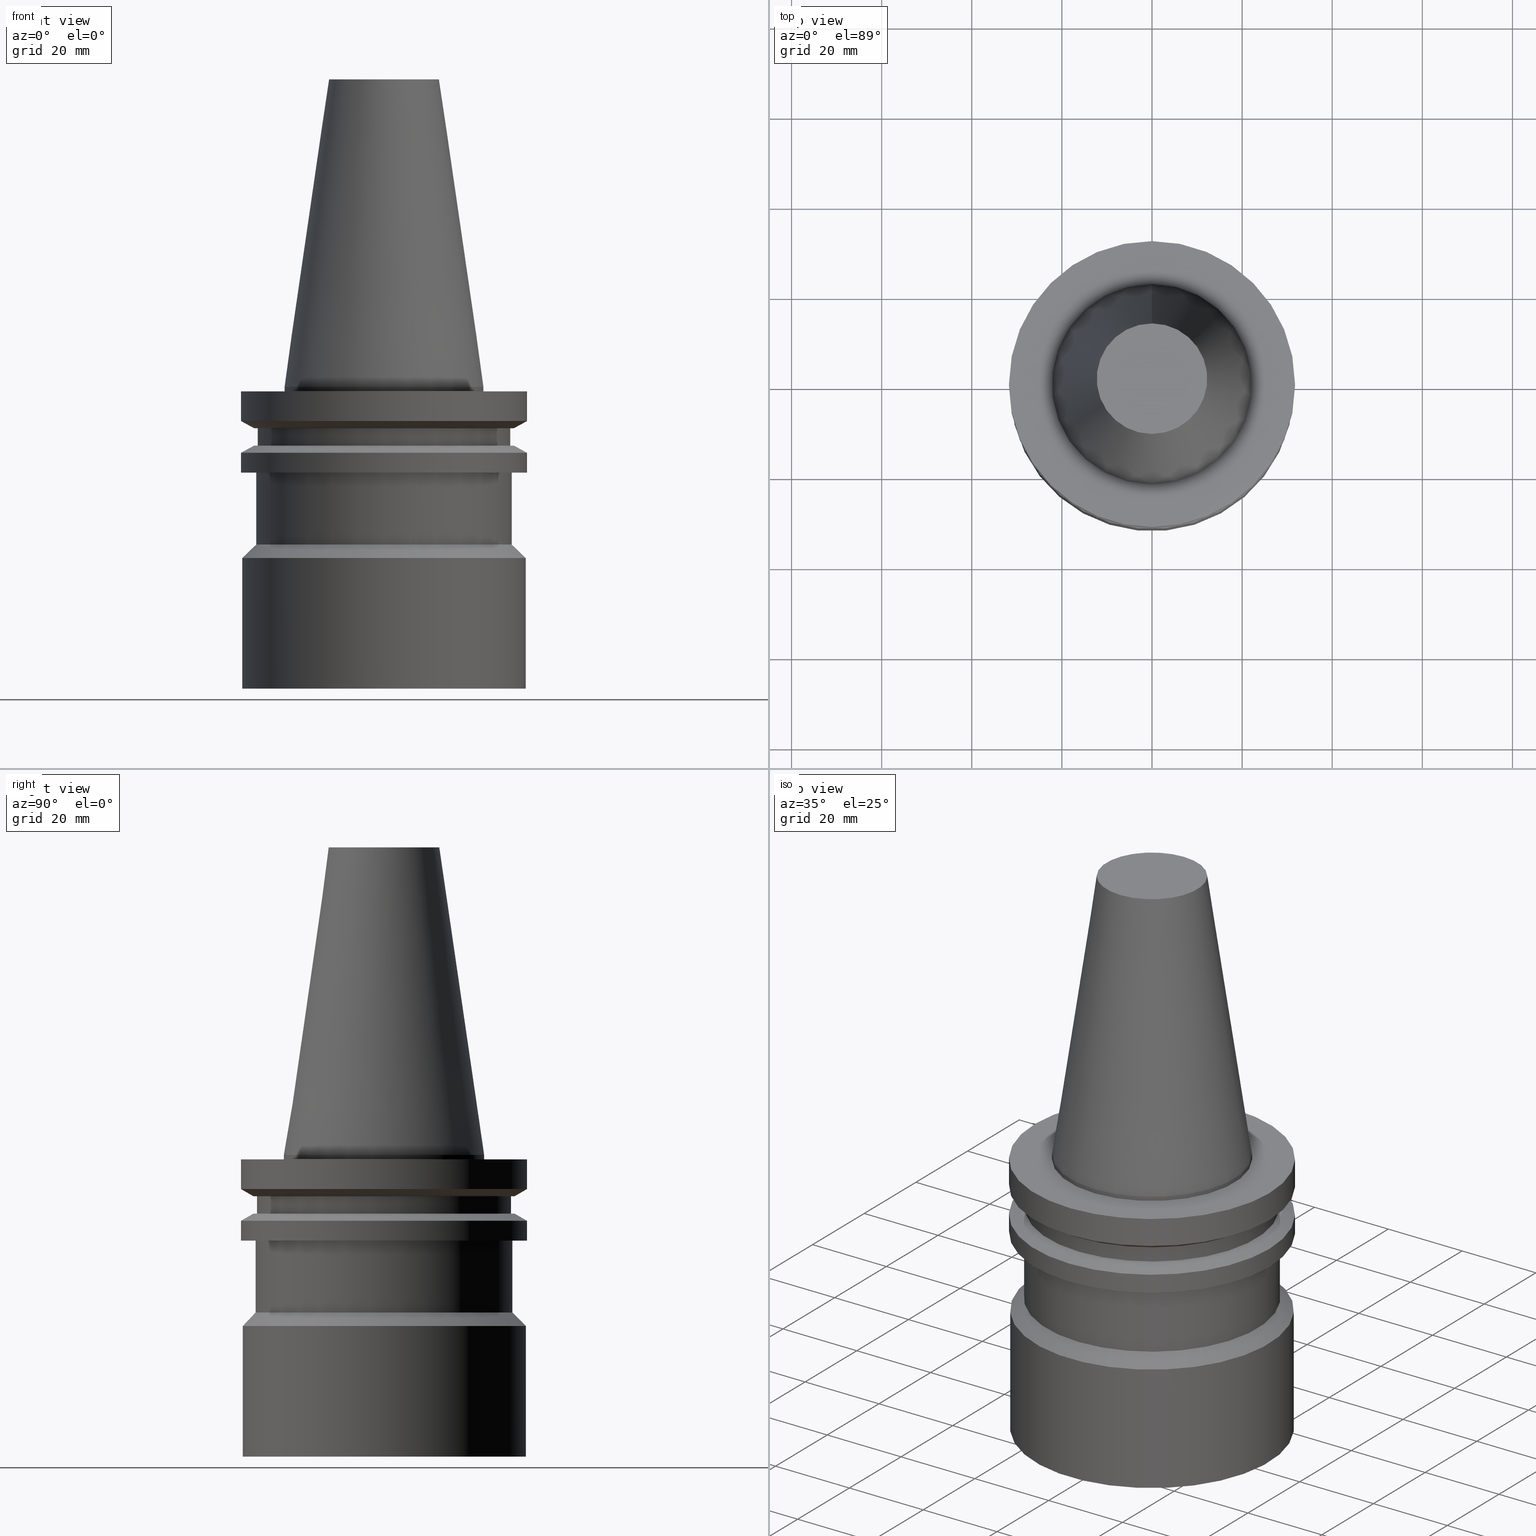
[diagram: canonical four-view strip — front | top / right | iso, engineering-drawing reading convention]
A machine part, canonical four-view strip (front | top / right | iso — engineering-drawing reading convention). The complete STEP part file that produces these views, byte-faithful:
ISO-10303-21;
HEADER;
FILE_DESCRIPTION((''),'1');
FILE_NAME('V:/01_Dxf_Field-HP\X2\FF71FF6FFF8CFF9F5916\X0\2013/BIGKAISER\X2\FF76FF80FF9BFF78FF9E63B28F095206\X0\_BKUS_201803/BCV_Y-S/BCV40Y-S63-2.625.stp','2018-03-13T06:05:27',(''),(''),'Spatial Interop R21 SP3','Kubotek KeyCreator 2011 V10.0.2 (22737)',' ');
FILE_SCHEMA(('automotive_design'));
ENDSEC;
DATA;
#1=MECHANICAL_DESIGN_GEOMETRIC_PRESENTATION_REPRESENTATION(' ',(#10,#11,#12,#13,#14,#15,#16,#17,#18,#19,#20,#21,#22,#23,#24,#25,#26,#27,#28,#29,#30,#31,#32,#33,#34,#35,#36,#37,#38,#39,#40,#41),#6);
#2=PRODUCT_DEFINITION_CONTEXT('',#42,'design');
#3=APPLICATION_PROTOCOL_DEFINITION('INTERNATIONAL STANDARD','automotive_design',1994,#42);
#4=PRODUCT_CATEGORY_RELATIONSHIP('NONE','NONE',#43,#44);
#5=SHAPE_DEFINITION_REPRESENTATION(#45,#46);
#6= (GEOMETRIC_REPRESENTATION_CONTEXT(3)GLOBAL_UNCERTAINTY_ASSIGNED_CONTEXT((#49))GLOBAL_UNIT_ASSIGNED_CONTEXT((#51,#52,#53))REPRESENTATION_CONTEXT('NONE','WORKSPACE'));
#10=STYLED_ITEM('',(#55,#56),#57);
#11=STYLED_ITEM('',(#58),#59);
#12=STYLED_ITEM('',(#60),#61);
#13=STYLED_ITEM('',(#62,#63),#64);
#14=STYLED_ITEM('',(#65),#66);
#15=STYLED_ITEM('',(#67,#68),#69);
#16=STYLED_ITEM('',(#70),#71);
#17=STYLED_ITEM('',(#72),#73);
#18=STYLED_ITEM('',(#74),#75);
#19=STYLED_ITEM('',(#76,#77),#78);
#20=STYLED_ITEM('',(#79,#80),#81);
#21=STYLED_ITEM('',(#82,#83),#84);
#22=STYLED_ITEM('',(#85),#86);
#23=STYLED_ITEM('',(#87),#88);
#24=STYLED_ITEM('',(#89),#90);
#25=STYLED_ITEM('',(#91),#92);
#26=STYLED_ITEM('',(#93,#94),#95);
#27=STYLED_ITEM('',(#96,#97),#98);
#28=STYLED_ITEM('',(#99),#100);
#29=STYLED_ITEM('',(#101,#102),#103);
#30=STYLED_ITEM('',(#104),#105);
#31=STYLED_ITEM('',(#106,#107),#108);
#32=STYLED_ITEM('',(#109,#110),#111);
#33=STYLED_ITEM('',(#112,#113),#114);
#34=STYLED_ITEM('',(#115,#116),#117);
#35=STYLED_ITEM('',(#118),#119);
#36=STYLED_ITEM('',(#120,#121),#122);
#37=STYLED_ITEM('',(#123,#124),#125);
#38=STYLED_ITEM('',(#126,#127),#128);
#39=STYLED_ITEM('',(#129),#130);
#40=STYLED_ITEM('',(#131),#132);
#41=STYLED_ITEM('',(#133,#134),#135);
#42=APPLICATION_CONTEXT(' ');
#43=PRODUCT_CATEGORY('part','NONE');
#44=PRODUCT_RELATED_PRODUCT_CATEGORY('detail',' ',(#136));
#45=PRODUCT_DEFINITION_SHAPE('NONE','NONE',#137);
#46=ADVANCED_BREP_SHAPE_REPRESENTATION('Unnamed[1]',(#69,#138),#6);
#49=UNCERTAINTY_MEASURE_WITH_UNIT(LENGTH_MEASURE(1.0E-006),#51,'','');
#51= (CONVERSION_BASED_UNIT('MILLIMETRE',#141)LENGTH_UNIT()NAMED_UNIT(#144));
#52= (NAMED_UNIT(#146)PLANE_ANGLE_UNIT()SI_UNIT($,.RADIAN.));
#53= (NAMED_UNIT(#146)SOLID_ANGLE_UNIT()SI_UNIT($,.STERADIAN.));
#55=PRESENTATION_STYLE_ASSIGNMENT((#152));
#56=PRESENTATION_STYLE_ASSIGNMENT((#153));
#57=ADVANCED_FACE('Unnamed[1]',(#154,#155),#156,.T.);
#58=PRESENTATION_STYLE_ASSIGNMENT((#157));
#59=EDGE_CURVE('Unnamed[1]',#158,#158,#159,.T.);
#60=PRESENTATION_STYLE_ASSIGNMENT((#160));
#61=EDGE_CURVE('Unnamed[1]',#161,#161,#162,.T.);
#62=PRESENTATION_STYLE_ASSIGNMENT((#163));
#63=PRESENTATION_STYLE_ASSIGNMENT((#164));
#64=ADVANCED_FACE('Unnamed[1]',(#165,#166),#167,.T.);
#65=PRESENTATION_STYLE_ASSIGNMENT((#168));
#66=EDGE_CURVE('Unnamed[1]',#169,#169,#170,.T.);
#67=PRESENTATION_STYLE_ASSIGNMENT((#171));
#68=PRESENTATION_STYLE_ASSIGNMENT((#172));
#69=MANIFOLD_SOLID_BREP('Unnamed[1]',#173);
#70=PRESENTATION_STYLE_ASSIGNMENT((#174));
#71=EDGE_CURVE('Unnamed[1]',#175,#175,#176,.T.);
#72=PRESENTATION_STYLE_ASSIGNMENT((#177));
#73=EDGE_CURVE('Unnamed[1]',#178,#178,#179,.T.);
#74=PRESENTATION_STYLE_ASSIGNMENT((#180));
#75=EDGE_CURVE('Unnamed[1]',#181,#181,#182,.T.);
#76=PRESENTATION_STYLE_ASSIGNMENT((#183));
#77=PRESENTATION_STYLE_ASSIGNMENT((#184));
#78=ADVANCED_FACE('Unnamed[1]',(#185,#186),#187,.T.);
#79=PRESENTATION_STYLE_ASSIGNMENT((#188));
#80=PRESENTATION_STYLE_ASSIGNMENT((#189));
#81=ADVANCED_FACE('Unnamed[1]',(#190),#191,.T.);
#82=PRESENTATION_STYLE_ASSIGNMENT((#192));
#83=PRESENTATION_STYLE_ASSIGNMENT((#193));
#84=ADVANCED_FACE('Unnamed[1]',(#194,#195),#196,.T.);
#85=PRESENTATION_STYLE_ASSIGNMENT((#197));
#86=EDGE_CURVE('Unnamed[1]',#198,#198,#199,.T.);
#87=PRESENTATION_STYLE_ASSIGNMENT((#200));
#88=EDGE_CURVE('Unnamed[1]',#201,#201,#202,.T.);
#89=PRESENTATION_STYLE_ASSIGNMENT((#203));
#90=EDGE_CURVE('Unnamed[1]',#204,#204,#205,.T.);
#91=PRESENTATION_STYLE_ASSIGNMENT((#206));
#92=EDGE_CURVE('Unnamed[1]',#207,#207,#208,.T.);
#93=PRESENTATION_STYLE_ASSIGNMENT((#209));
#94=PRESENTATION_STYLE_ASSIGNMENT((#210));
#95=ADVANCED_FACE('Unnamed[1]',(#211,#212),#213,.T.);
#96=PRESENTATION_STYLE_ASSIGNMENT((#214));
#97=PRESENTATION_STYLE_ASSIGNMENT((#215));
#98=ADVANCED_FACE('Unnamed[1]',(#216,#217),#218,.T.);
#99=PRESENTATION_STYLE_ASSIGNMENT((#219));
#100=EDGE_CURVE('Unnamed[1]',#220,#220,#221,.T.);
#101=PRESENTATION_STYLE_ASSIGNMENT((#222));
#102=PRESENTATION_STYLE_ASSIGNMENT((#223));
#103=ADVANCED_FACE('Unnamed[1]',(#224,#225),#226,.T.);
#104=PRESENTATION_STYLE_ASSIGNMENT((#227));
#105=EDGE_CURVE('Unnamed[1]',#228,#228,#229,.T.);
#106=PRESENTATION_STYLE_ASSIGNMENT((#230));
#107=PRESENTATION_STYLE_ASSIGNMENT((#231));
#108=ADVANCED_FACE('Unnamed[1]',(#232,#233),#234,.T.);
#109=PRESENTATION_STYLE_ASSIGNMENT((#235));
#110=PRESENTATION_STYLE_ASSIGNMENT((#236));
#111=ADVANCED_FACE('Unnamed[1]',(#237,#238),#239,.T.);
#112=PRESENTATION_STYLE_ASSIGNMENT((#240));
#113=PRESENTATION_STYLE_ASSIGNMENT((#241));
#114=ADVANCED_FACE('Unnamed[1]',(#242),#243,.T.);
#115=PRESENTATION_STYLE_ASSIGNMENT((#244));
#116=PRESENTATION_STYLE_ASSIGNMENT((#245));
#117=ADVANCED_FACE('Unnamed[1]',(#246,#247),#248,.T.);
#118=PRESENTATION_STYLE_ASSIGNMENT((#249));
#119=EDGE_CURVE('Unnamed[1]',#250,#250,#251,.T.);
#120=PRESENTATION_STYLE_ASSIGNMENT((#252));
#121=PRESENTATION_STYLE_ASSIGNMENT((#253));
#122=ADVANCED_FACE('Unnamed[1]',(#254,#255),#256,.T.);
#123=PRESENTATION_STYLE_ASSIGNMENT((#257));
#124=PRESENTATION_STYLE_ASSIGNMENT((#258));
#125=ADVANCED_FACE('Unnamed[1]',(#259,#260),#261,.T.);
#126=PRESENTATION_STYLE_ASSIGNMENT((#262));
#127=PRESENTATION_STYLE_ASSIGNMENT((#263));
#128=ADVANCED_FACE('Unnamed[1]',(#264,#265),#266,.T.);
#129=PRESENTATION_STYLE_ASSIGNMENT((#267));
#130=EDGE_CURVE('Unnamed[1]',#268,#268,#269,.T.);
#131=PRESENTATION_STYLE_ASSIGNMENT((#270));
#132=EDGE_CURVE('Unnamed[1]',#271,#271,#272,.T.);
#133=PRESENTATION_STYLE_ASSIGNMENT((#273));
#134=PRESENTATION_STYLE_ASSIGNMENT((#274));
#135=ADVANCED_FACE('Unnamed[1]',(#275,#276),#277,.T.);
#136=PRODUCT('Unnamed[1]','Unnamed[1]','PART-Unnamed[1]-DESC',(#278));
#137=PRODUCT_DEFINITION('NONE','NONE',#279,#2);
#138=AXIS2_PLACEMENT_3D('',#280,#281,#282);
#141=LENGTH_MEASURE_WITH_UNIT(LENGTH_MEASURE(1.0),#283);
#144=DIMENSIONAL_EXPONENTS(1.0,0.0,0.0,0.0,0.0,0.0,0.0);
#146=DIMENSIONAL_EXPONENTS(0.0,0.0,0.0,0.0,0.0,0.0,0.0);
#152=SURFACE_STYLE_USAGE(.BOTH.,#284);
#153=CURVE_STYLE('',#285,POSITIVE_LENGTH_MEASURE(1000.0),#286);
#154=FACE_BOUND('',#287,.T.);
#155=FACE_BOUND('',#288,.T.);
#156=CONICAL_SURFACE('',#289,30.0,0.78539816339747);
#157=CURVE_STYLE('',#290,POSITIVE_LENGTH_MEASURE(1000.0),#291);
#158=VERTEX_POINT('',#292);
#159=CIRCLE('',#293,28.18);
#160=CURVE_STYLE('',#294,POSITIVE_LENGTH_MEASURE(1000.0),#295);
#161=VERTEX_POINT('',#296);
#162=CIRCLE('',#297,31.5);
#163=SURFACE_STYLE_USAGE(.BOTH.,#298);
#164=CURVE_STYLE('',#299,POSITIVE_LENGTH_MEASURE(1000.0),#300);
#165=FACE_BOUND('',#301,.T.);
#166=FACE_BOUND('',#302,.T.);
#167=CYLINDRICAL_SURFACE('',#303,28.5);
#168=CURVE_STYLE('',#304,POSITIVE_LENGTH_MEASURE(1000.0),#305);
#169=VERTEX_POINT('',#306);
#170=CIRCLE('',#307,31.75);
#171=SURFACE_STYLE_USAGE(.BOTH.,#308);
#172=CURVE_STYLE('',#309,POSITIVE_LENGTH_MEASURE(1000.0),#310);
#173=CLOSED_SHELL('',(#114,#108,#135,#122,#95,#78,#103,#125,#111,#84,#98,#128,#64,#57,#117,#81));
#174=CURVE_STYLE('',#311,POSITIVE_LENGTH_MEASURE(1000.0),#312);
#175=VERTEX_POINT('',#313);
#176=CIRCLE('',#314,28.18);
#177=CURVE_STYLE('',#315,POSITIVE_LENGTH_MEASURE(1000.0),#316);
#178=VERTEX_POINT('',#317);
#179=CIRCLE('',#318,22.225);
#180=CURVE_STYLE('',#319,POSITIVE_LENGTH_MEASURE(1000.0),#320);
#181=VERTEX_POINT('',#321);
#182=CIRCLE('',#322,28.9680375505323);
#183=SURFACE_STYLE_USAGE(.BOTH.,#323);
#184=CURVE_STYLE('',#324,POSITIVE_LENGTH_MEASURE(1000.0),#325);
#185=FACE_BOUND('',#326,.T.);
#186=FACE_BOUND('',#327,.T.);
#187=CONICAL_SURFACE('',#328,30.3590187752662,1.0471975511966);
#188=SURFACE_STYLE_USAGE(.BOTH.,#329);
#189=CURVE_STYLE('',#330,POSITIVE_LENGTH_MEASURE(1000.0),#331);
#190=FACE_OUTER_BOUND('',#332,.T.);
#191=PLANE('',#333);
#192=SURFACE_STYLE_USAGE(.BOTH.,#334);
#193=CURVE_STYLE('',#335,POSITIVE_LENGTH_MEASURE(1000.0),#336);
#194=FACE_BOUND('',#337,.T.);
#195=FACE_BOUND('',#338,.T.);
#196=CONICAL_SURFACE('',#339,30.3590187752662,1.0471975511966);
#197=CURVE_STYLE('',#340,POSITIVE_LENGTH_MEASURE(1000.0),#341);
#198=VERTEX_POINT('',#342);
#199=CIRCLE('',#343,31.75);
#200=CURVE_STYLE('',#344,POSITIVE_LENGTH_MEASURE(1000.0),#345);
#201=VERTEX_POINT('',#346);
#202=CIRCLE('',#347,28.5);
#203=CURVE_STYLE('',#348,POSITIVE_LENGTH_MEASURE(1000.0),#349);
#204=VERTEX_POINT('',#350);
#205=CIRCLE('',#351,28.5000000000001);
#206=CURVE_STYLE('',#352,POSITIVE_LENGTH_MEASURE(1000.0),#353);
#207=VERTEX_POINT('',#354);
#208=CIRCLE('',#355,31.75);
#209=SURFACE_STYLE_USAGE(.BOTH.,#356);
#210=CURVE_STYLE('',#357,POSITIVE_LENGTH_MEASURE(1000.0),#358);
#211=FACE_BOUND('',#359,.T.);
#212=FACE_BOUND('',#360,.T.);
#213=CYLINDRICAL_SURFACE('',#361,31.75);
#214=SURFACE_STYLE_USAGE(.BOTH.,#362);
#215=CURVE_STYLE('',#363,POSITIVE_LENGTH_MEASURE(1000.0),#364);
#216=FACE_BOUND('',#365,.T.);
#217=FACE_BOUND('',#366,.T.);
#218=CYLINDRICAL_SURFACE('',#367,31.75);
#219=CURVE_STYLE('',#368,POSITIVE_LENGTH_MEASURE(1000.0),#369);
#220=VERTEX_POINT('',#370);
#221=CIRCLE('',#371,22.225);
#222=SURFACE_STYLE_USAGE(.BOTH.,#372);
#223=CURVE_STYLE('',#373,POSITIVE_LENGTH_MEASURE(1000.0),#374);
#224=FACE_BOUND('',#375,.T.);
#225=FACE_OUTER_BOUND('',#376,.T.);
#226=PLANE('',#377);
#227=CURVE_STYLE('',#378,POSITIVE_LENGTH_MEASURE(1000.0),#379);
#228=VERTEX_POINT('',#380);
#229=CIRCLE('',#381,31.5);
#230=SURFACE_STYLE_USAGE(.BOTH.,#382);
#231=CURVE_STYLE('',#383,POSITIVE_LENGTH_MEASURE(1000.0),#384);
#232=FACE_BOUND('',#385,.T.);
#233=FACE_BOUND('',#386,.T.);
#234=CONICAL_SURFACE('',#387,17.2484375007384,0.144812498217751);
#235=SURFACE_STYLE_USAGE(.BOTH.,#388);
#236=CURVE_STYLE('',#389,POSITIVE_LENGTH_MEASURE(1000.0),#390);
#237=FACE_OUTER_BOUND('',#391,.T.);
#238=FACE_BOUND('',#392,.T.);
#239=PLANE('',#393);
#240=SURFACE_STYLE_USAGE(.BOTH.,#394);
#241=CURVE_STYLE('',#395,POSITIVE_LENGTH_MEASURE(1000.0),#396);
#242=FACE_OUTER_BOUND('',#397,.T.);
#243=PLANE('',#398);
#244=SURFACE_STYLE_USAGE(.BOTH.,#399);
#245=CURVE_STYLE('',#400,POSITIVE_LENGTH_MEASURE(1000.0),#401);
#246=FACE_BOUND('',#402,.T.);
#247=FACE_BOUND('',#403,.T.);
#248=CYLINDRICAL_SURFACE('',#404,31.5);
#249=CURVE_STYLE('',#405,POSITIVE_LENGTH_MEASURE(1000.0),#406);
#250=VERTEX_POINT('',#407);
#251=CIRCLE('',#408,31.75);
#252=SURFACE_STYLE_USAGE(.BOTH.,#409);
#253=CURVE_STYLE('',#410,POSITIVE_LENGTH_MEASURE(1000.0),#411);
#254=FACE_OUTER_BOUND('',#412,.T.);
#255=FACE_BOUND('',#413,.T.);
#256=PLANE('',#414);
#257=SURFACE_STYLE_USAGE(.BOTH.,#415);
#258=CURVE_STYLE('',#416,POSITIVE_LENGTH_MEASURE(1000.0),#417);
#259=FACE_BOUND('',#418,.T.);
#260=FACE_BOUND('',#419,.T.);
#261=CYLINDRICAL_SURFACE('',#420,28.18);
#262=SURFACE_STYLE_USAGE(.BOTH.,#421);
#263=CURVE_STYLE('',#422,POSITIVE_LENGTH_MEASURE(1000.0),#423);
#264=FACE_BOUND('',#424,.T.);
#265=FACE_OUTER_BOUND('',#425,.T.);
#266=PLANE('',#426);
#267=CURVE_STYLE('',#427,POSITIVE_LENGTH_MEASURE(1000.0),#428);
#268=VERTEX_POINT('',#429);
#269=CIRCLE('',#430,12.2718750014768);
#270=CURVE_STYLE('',#431,POSITIVE_LENGTH_MEASURE(1000.0),#432);
#271=VERTEX_POINT('',#433);
#272=CIRCLE('',#434,28.9680375505324);
#273=SURFACE_STYLE_USAGE(.BOTH.,#435);
#274=CURVE_STYLE('',#436,POSITIVE_LENGTH_MEASURE(1000.0),#437);
#275=FACE_BOUND('',#438,.T.);
#276=FACE_BOUND('',#439,.T.);
#277=CYLINDRICAL_SURFACE('',#440,22.225);
#278=PRODUCT_CONTEXT('',#42,'mechanical');
#279=PRODUCT_DEFINITION_FORMATION_WITH_SPECIFIED_SOURCE(' ','NONE',#136,.NOT_KNOWN.);
#280=CARTESIAN_POINT('',(0.0,0.0,0.0));
#281=DIRECTION('',(0.0,0.0,1.0));
#282=DIRECTION('',(1.0,0.0,0.0));
#283= (NAMED_UNIT(#144)LENGTH_UNIT()SI_UNIT(.MILLI.,.METRE.));
#284=SURFACE_SIDE_STYLE('',(#442));
#285=DRAUGHTING_PRE_DEFINED_CURVE_FONT('continuous');
#286=COLOUR_RGB('',0.0,1.0,0.0);
#287=EDGE_LOOP('',(#443));
#288=EDGE_LOOP('',(#444));
#289=AXIS2_PLACEMENT_3D('',#445,#446,#447);
#290=DRAUGHTING_PRE_DEFINED_CURVE_FONT('continuous');
#291=COLOUR_RGB('',0.0,1.0,0.0);
#292=CARTESIAN_POINT('',(5.63337527607784E-016,28.18,-9.20000000000002));
#293=AXIS2_PLACEMENT_3D('',#448,#449,#450);
#294=DRAUGHTING_PRE_DEFINED_CURVE_FONT('continuous');
#295=COLOUR_RGB('',0.0,1.0,0.0);
#296=CARTESIAN_POINT('',(4.10256677714362E-015,31.4999999999999,-66.9999999999998));
#297=AXIS2_PLACEMENT_3D('',#451,#452,#453);
#298=SURFACE_SIDE_STYLE('',(#454));
#299=DRAUGHTING_PRE_DEFINED_CURVE_FONT('continuous');
#300=COLOUR_RGB('',0.0,1.0,0.0);
#301=EDGE_LOOP('',(#455));
#302=EDGE_LOOP('',(#456));
#303=AXIS2_PLACEMENT_3D('',#457,#458,#459);
#304=DRAUGHTING_PRE_DEFINED_CURVE_FONT('continuous');
#305=COLOUR_RGB('',0.0,1.0,0.0);
#306=CARTESIAN_POINT('',(6.12323399573673E-017,31.75,-0.999999999999996));
#307=AXIS2_PLACEMENT_3D('',#460,#461,#462);
#308=SURFACE_SIDE_STYLE('',(#463));
#309=DRAUGHTING_PRE_DEFINED_CURVE_FONT('continuous');
#310=COLOUR_RGB('',0.0,1.0,0.0);
#311=DRAUGHTING_PRE_DEFINED_CURVE_FONT('continuous');
#312=COLOUR_RGB('',0.0,1.0,0.0);
#313=CARTESIAN_POINT('',(7.98469713044073E-016,28.18,-13.04));
#314=AXIS2_PLACEMENT_3D('',#464,#465,#466);
#315=DRAUGHTING_PRE_DEFINED_CURVE_FONT('continuous');
#316=COLOUR_RGB('',0.0,1.0,0.0);
#317=CARTESIAN_POINT('',(6.12323399573674E-017,22.225,-0.999999999999997));
#318=AXIS2_PLACEMENT_3D('',#467,#468,#469);
#319=DRAUGHTING_PRE_DEFINED_CURVE_FONT('continuous');
#320=COLOUR_RGB('',0.0,1.0,0.0);
#321=CARTESIAN_POINT('',(5.63337527607784E-016,28.9680375505323,-9.20000000000002));
#322=AXIS2_PLACEMENT_3D('',#470,#471,#472);
#323=SURFACE_SIDE_STYLE('',(#473));
#324=DRAUGHTING_PRE_DEFINED_CURVE_FONT('continuous');
#325=COLOUR_RGB('',0.0,1.0,0.0);
#326=EDGE_LOOP('',(#474));
#327=EDGE_LOOP('',(#475));
#328=AXIS2_PLACEMENT_3D('',#476,#477,#478);
#329=SURFACE_SIDE_STYLE('',(#479));
#330=DRAUGHTING_PRE_DEFINED_CURVE_FONT('continuous');
#331=COLOUR_RGB('',0.0,1.0,0.0);
#332=EDGE_LOOP('',(#480));
#333=AXIS2_PLACEMENT_3D('',#481,#482,#483);
#334=SURFACE_SIDE_STYLE('',(#484));
#335=DRAUGHTING_PRE_DEFINED_CURVE_FONT('continuous');
#336=COLOUR_RGB('',0.0,1.0,0.0);
#337=EDGE_LOOP('',(#485));
#338=EDGE_LOOP('',(#486));
#339=AXIS2_PLACEMENT_3D('',#487,#488,#489);
#340=DRAUGHTING_PRE_DEFINED_CURVE_FONT('continuous');
#341=COLOUR_RGB('',0.0,1.0,0.0);
#342=CARTESIAN_POINT('',(1.16647607618786E-015,31.75,-19.05));
#343=AXIS2_PLACEMENT_3D('',#490,#491,#492);
#344=DRAUGHTING_PRE_DEFINED_CURVE_FONT('continuous');
#345=COLOUR_RGB('',0.0,1.0,0.0);
#346=CARTESIAN_POINT('',(1.16647607618786E-015,28.5,-19.0500000000001));
#347=AXIS2_PLACEMENT_3D('',#493,#494,#495);
#348=DRAUGHTING_PRE_DEFINED_CURVE_FONT('continuous');
#349=COLOUR_RGB('',0.0,1.0,0.0);
#350=CARTESIAN_POINT('',(2.14313189850787E-015,28.5,-35.0));
#351=AXIS2_PLACEMENT_3D('',#496,#497,#498);
#352=DRAUGHTING_PRE_DEFINED_CURVE_FONT('continuous');
#353=COLOUR_RGB('',0.0,1.0,0.0);
#354=CARTESIAN_POINT('',(4.64988177975518E-016,31.75,-7.59383323092439));
#355=AXIS2_PLACEMENT_3D('',#499,#500,#501);
#356=SURFACE_SIDE_STYLE('',(#502));
#357=DRAUGHTING_PRE_DEFINED_CURVE_FONT('continuous');
#358=COLOUR_RGB('',0.0,1.0,0.0);
#359=EDGE_LOOP('',(#503));
#360=EDGE_LOOP('',(#504));
#361=AXIS2_PLACEMENT_3D('',#505,#506,#507);
#362=SURFACE_SIDE_STYLE('',(#508));
#363=DRAUGHTING_PRE_DEFINED_CURVE_FONT('continuous');
#364=COLOUR_RGB('',0.0,1.0,0.0);
#365=EDGE_LOOP('',(#509));
#366=EDGE_LOOP('',(#510));
#367=AXIS2_PLACEMENT_3D('',#511,#512,#513);
#368=DRAUGHTING_PRE_DEFINED_CURVE_FONT('continuous');
#369=COLOUR_RGB('',0.0,1.0,0.0);
#370=CARTESIAN_POINT('',(-2.7394427528964E-031,22.225,2.72177751110499E-015));
#371=AXIS2_PLACEMENT_3D('',#514,#515,#516);
#372=SURFACE_SIDE_STYLE('',(#517));
#373=DRAUGHTING_PRE_DEFINED_CURVE_FONT('continuous');
#374=COLOUR_RGB('',0.0,1.0,0.0);
#375=EDGE_LOOP('',(#518));
#376=EDGE_LOOP('',(#519));
#377=AXIS2_PLACEMENT_3D('',#520,#521,#522);
#378=DRAUGHTING_PRE_DEFINED_CURVE_FONT('continuous');
#379=COLOUR_RGB('',0.0,1.0,0.0);
#380=CARTESIAN_POINT('',(2.32682891837996E-015,31.5,-37.9999999999998));
#381=AXIS2_PLACEMENT_3D('',#523,#524,#525);
#382=SURFACE_SIDE_STYLE('',(#526));
#383=DRAUGHTING_PRE_DEFINED_CURVE_FONT('continuous');
#384=COLOUR_RGB('',0.0,1.0,0.0);
#385=EDGE_LOOP('',(#527));
#386=EDGE_LOOP('',(#528));
#387=AXIS2_PLACEMENT_3D('',#529,#530,#531);
#388=SURFACE_SIDE_STYLE('',(#532));
#389=DRAUGHTING_PRE_DEFINED_CURVE_FONT('continuous');
#390=COLOUR_RGB('',0.0,1.0,0.0);
#391=EDGE_LOOP('',(#533));
#392=EDGE_LOOP('',(#534));
#393=AXIS2_PLACEMENT_3D('',#535,#536,#537);
#394=SURFACE_SIDE_STYLE('',(#538));
#395=DRAUGHTING_PRE_DEFINED_CURVE_FONT('continuous');
#396=COLOUR_RGB('',0.0,1.0,0.0);
#397=EDGE_LOOP('',(#539));
#398=AXIS2_PLACEMENT_3D('',#540,#541,#542);
#399=SURFACE_SIDE_STYLE('',(#543));
#400=DRAUGHTING_PRE_DEFINED_CURVE_FONT('continuous');
#401=COLOUR_RGB('',0.0,1.0,0.0);
#402=EDGE_LOOP('',(#544));
#403=EDGE_LOOP('',(#545));
#404=AXIS2_PLACEMENT_3D('',#546,#547,#548);
#405=DRAUGHTING_PRE_DEFINED_CURVE_FONT('continuous');
#406=COLOUR_RGB('',0.0,1.0,0.0);
#407=CARTESIAN_POINT('',(8.96819062676333E-016,31.75,-14.6461667690755));
#408=AXIS2_PLACEMENT_3D('',#549,#550,#551);
#409=SURFACE_SIDE_STYLE('',(#552));
#410=DRAUGHTING_PRE_DEFINED_CURVE_FONT('continuous');
#411=COLOUR_RGB('',0.0,1.0,0.0);
#412=EDGE_LOOP('',(#553));
#413=EDGE_LOOP('',(#554));
#414=AXIS2_PLACEMENT_3D('',#555,#556,#557);
#415=SURFACE_SIDE_STYLE('',(#558));
#416=DRAUGHTING_PRE_DEFINED_CURVE_FONT('continuous');
#417=COLOUR_RGB('',0.0,1.0,0.0);
#418=EDGE_LOOP('',(#559));
#419=EDGE_LOOP('',(#560));
#420=AXIS2_PLACEMENT_3D('',#561,#562,#563);
#421=SURFACE_SIDE_STYLE('',(#564));
#422=DRAUGHTING_PRE_DEFINED_CURVE_FONT('continuous');
#423=COLOUR_RGB('',0.0,1.0,0.0);
#424=EDGE_LOOP('',(#565));
#425=EDGE_LOOP('',(#566));
#426=AXIS2_PLACEMENT_3D('',#567,#568,#569);
#427=DRAUGHTING_PRE_DEFINED_CURVE_FONT('continuous');
#428=COLOUR_RGB('',0.0,1.0,0.0);
#429=CARTESIAN_POINT('',(-4.17910720209034E-015,12.2718750014768,68.25));
#430=AXIS2_PLACEMENT_3D('',#570,#571,#572);
#431=DRAUGHTING_PRE_DEFINED_CURVE_FONT('continuous');
#432=COLOUR_RGB('',0.0,1.0,0.0);
#433=CARTESIAN_POINT('',(7.98469713044073E-016,28.9680375505324,-13.04));
#434=AXIS2_PLACEMENT_3D('',#573,#574,#575);
#435=SURFACE_SIDE_STYLE('',(#576));
#436=DRAUGHTING_PRE_DEFINED_CURVE_FONT('continuous');
#437=COLOUR_RGB('',0.0,1.0,0.0);
#438=EDGE_LOOP('',(#577));
#439=EDGE_LOOP('',(#578));
#440=AXIS2_PLACEMENT_3D('',#579,#580,#581);
#442=SURFACE_STYLE_FILL_AREA(#582);
#443=ORIENTED_EDGE('',*,*,#105,.F.);
#444=ORIENTED_EDGE('',*,*,#90,.T.);
#445=CARTESIAN_POINT('',(2.23498040844391E-015,-2.14185637732761E-014,-36.4999999999999));
#446=DIRECTION('',(6.12323399573677E-017,-1.22344063254654E-016,-1.0));
#447=DIRECTION('',(2.66426054220742E-033,1.0,-1.22344063254654E-016));
#448=CARTESIAN_POINT('',(5.63337527607784E-016,-1.80785708464238E-014,-9.20000000000002));
#449=DIRECTION('',(6.12323399573676E-017,-1.22344063254674E-016,-1.0));
#450=DIRECTION('',(2.66426054220673E-033,1.0,-1.22344063254674E-016));
#451=CARTESIAN_POINT('',(4.10256677714362E-015,-2.51500577025434E-014,-66.9999999999998));
#452=DIRECTION('',(6.12323399573677E-017,-1.22344063254662E-016,-1.0));
#453=DIRECTION('',(2.66426054220543E-033,1.0,-1.22344063254662E-016));
#454=SURFACE_STYLE_FILL_AREA(#583);
#455=ORIENTED_EDGE('',*,*,#90,.F.);
#456=ORIENTED_EDGE('',*,*,#88,.T.);
#457=CARTESIAN_POINT('',(1.65480398734786E-015,-2.02593537739382E-014,-27.025));
#458=DIRECTION('',(6.12323399573677E-017,-1.22344063254646E-016,-1.0));
#459=DIRECTION('',(2.66426054220332E-033,1.0,-1.22344063254646E-016));
#460=CARTESIAN_POINT('',(6.12323399573668E-017,-1.70753495277356E-014,-0.999999999999986));
#461=DIRECTION('',(6.12323399573677E-017,-1.22344063254663E-016,-1.0));
#462=DIRECTION('',(2.66426054220605E-033,1.0,-1.22344063254663E-016));
#463=SURFACE_STYLE_FILL_AREA(#584);
#464=CARTESIAN_POINT('',(7.98469713044073E-016,-1.85483720493217E-014,-13.04));
#465=DIRECTION('',(6.12323399573677E-017,-1.22344063254674E-016,-1.0));
#466=DIRECTION('',(2.66426054220673E-033,1.0,-1.22344063254674E-016));
#467=CARTESIAN_POINT('',(6.12323399573677E-017,-1.70753495277356E-014,-1.0));
#468=DIRECTION('',(6.12323399573676E-017,-1.22344063254663E-016,-1.0));
#469=DIRECTION('',(2.6642605422113E-033,1.0,-1.22344063254663E-016));
#470=CARTESIAN_POINT('',(5.63337527607784E-016,-1.80785708464238E-014,-9.20000000000002));
#471=DIRECTION('',(6.12323399573677E-017,-1.22344063254641E-016,-1.0));
#472=DIRECTION('',(2.66426054220645E-033,1.0,-1.22344063254641E-016));
#473=SURFACE_STYLE_FILL_AREA(#585);
#474=ORIENTED_EDGE('',*,*,#75,.F.);
#475=ORIENTED_EDGE('',*,*,#92,.T.);
#476=CARTESIAN_POINT('',(5.14162852791651E-016,-1.79803183620272E-014,-8.3969166154622));
#477=DIRECTION('',(-6.12323399573677E-017,1.22344063254653E-016,1.0));
#478=DIRECTION('',(2.66426054220624E-033,1.0,-1.22344063254653E-016));
#479=SURFACE_STYLE_FILL_AREA(#586);
#480=ORIENTED_EDGE('',*,*,#61,.T.);
#481=CARTESIAN_POINT('',(4.10256677714362E-015,15.75,-66.9999999999998));
#482=DIRECTION('',(6.12323399573677E-017,-1.68208829979346E-015,-1.0));
#483=DIRECTION('',(9.81710498804946E-032,1.0,-1.68208829979346E-015));
#484=SURFACE_STYLE_FILL_AREA(#587);
#485=ORIENTED_EDGE('',*,*,#119,.F.);
#486=ORIENTED_EDGE('',*,*,#132,.T.);
#487=CARTESIAN_POINT('',(8.47644387860203E-016,-1.86466245337184E-014,-13.8430833845377));
#488=DIRECTION('',(6.12323399573677E-017,-1.22344063254652E-016,-1.0));
#489=DIRECTION('',(2.66426054220624E-033,1.0,-1.22344063254652E-016));
#490=CARTESIAN_POINT('',(1.16647607618786E-015,-1.92836598694823E-014,-19.05));
#491=DIRECTION('',(6.12323399573677E-017,-1.22344063254663E-016,-1.0));
#492=DIRECTION('',(2.66426054220323E-033,1.0,-1.22344063254663E-016));
#493=CARTESIAN_POINT('',(1.16647607618786E-015,-1.92836598694823E-014,-19.0500000000001));
#494=DIRECTION('',(6.12323399573677E-017,-1.22344063254646E-016,-1.0));
#495=DIRECTION('',(2.66426054220333E-033,1.0,-1.22344063254646E-016));
#496=CARTESIAN_POINT('',(2.14313189850787E-015,-2.12350476783941E-014,-35.0));
#497=DIRECTION('',(6.12323399573677E-017,-1.22344063254646E-016,-1.0));
#498=DIRECTION('',(2.66426054220647E-033,1.0,-1.22344063254646E-016));
#499=CARTESIAN_POINT('',(4.64988177975518E-016,-1.78820658776305E-014,-7.59383323092439));
#500=DIRECTION('',(6.12323399573677E-017,-1.22344063254663E-016,-1.0));
#501=DIRECTION('',(2.66426054220605E-033,1.0,-1.22344063254663E-016));
#502=SURFACE_STYLE_FILL_AREA(#588);
#503=ORIENTED_EDGE('',*,*,#92,.F.);
#504=ORIENTED_EDGE('',*,*,#66,.T.);
#505=CARTESIAN_POINT('',(2.63110258966442E-016,-1.7478707702683E-014,-4.29691661546219));
#506=DIRECTION('',(6.12323399573677E-017,-1.22344063254663E-016,-1.0));
#507=DIRECTION('',(2.66426054220605E-033,1.0,-1.22344063254663E-016));
#508=SURFACE_STYLE_FILL_AREA(#589);
#509=ORIENTED_EDGE('',*,*,#86,.F.);
#510=ORIENTED_EDGE('',*,*,#119,.T.);
#511=CARTESIAN_POINT('',(1.03164756943209E-015,-1.90142684437986E-014,-16.8480833845378));
#512=DIRECTION('',(6.12323399573677E-017,-1.22344063254663E-016,-1.0));
#513=DIRECTION('',(2.66426054220605E-033,1.0,-1.22344063254663E-016));
#514=CARTESIAN_POINT('',(2.08961925576987E-046,-1.69530054644809E-014,-2.07614438780041E-030));
#515=DIRECTION('',(6.12323399573676E-017,-1.22344063254663E-016,-1.0));
#516=DIRECTION('',(2.6642605422113E-033,1.0,-1.22344063254663E-016));
#517=SURFACE_STYLE_FILL_AREA(#590);
#518=ORIENTED_EDGE('',*,*,#59,.F.);
#519=ORIENTED_EDGE('',*,*,#75,.T.);
#520=CARTESIAN_POINT('',(5.63337527607784E-016,28.5740187752661,-9.20000000000002));
#521=DIRECTION('',(6.12323399573677E-017,1.22464679914735E-016,-1.0));
#522=DIRECTION('',(-1.23259516440783E-032,1.0,1.22464679914735E-016));
#523=CARTESIAN_POINT('',(2.32682891837996E-015,-2.16020798681581E-014,-37.9999999999998));
#524=DIRECTION('',(6.12323399573677E-017,-1.22344063254662E-016,-1.0));
#525=DIRECTION('',(2.66426054220543E-033,1.0,-1.22344063254662E-016));
#526=SURFACE_STYLE_FILL_AREA(#591);
#527=ORIENTED_EDGE('',*,*,#100,.F.);
#528=ORIENTED_EDGE('',*,*,#130,.T.);
#529=CARTESIAN_POINT('',(-2.08955360104517E-015,-1.27780143059155E-014,34.125));
#530=DIRECTION('',(6.12323399573676E-017,-1.22344063254642E-016,-1.0));
#531=DIRECTION('',(2.66426054220868E-033,1.0,-1.22344063254642E-016));
#532=SURFACE_STYLE_FILL_AREA(#592);
#533=ORIENTED_EDGE('',*,*,#132,.F.);
#534=ORIENTED_EDGE('',*,*,#71,.T.);
#535=CARTESIAN_POINT('',(7.98469713044073E-016,28.5740187752662,-13.04));
#536=DIRECTION('',(-6.12323399573677E-017,-1.22464679914735E-016,1.0));
#537=DIRECTION('',(1.23259516440783E-032,-1.0,-1.22464679914735E-016));
#538=SURFACE_STYLE_FILL_AREA(#593);
#539=ORIENTED_EDGE('',*,*,#130,.F.);
#540=CARTESIAN_POINT('',(-4.17910720209034E-015,6.13593750073841,68.25));
#541=DIRECTION('',(-6.12323399573677E-017,1.03553723205811E-015,1.0));
#542=DIRECTION('',(-5.8581215101125E-032,-1.0,1.03553723205811E-015));
#543=SURFACE_STYLE_FILL_AREA(#594);
#544=ORIENTED_EDGE('',*,*,#61,.F.);
#545=ORIENTED_EDGE('',*,*,#105,.T.);
#546=CARTESIAN_POINT('',(3.21469784776179E-015,-2.33760687853507E-014,-52.4999999999998));
#547=DIRECTION('',(6.12323399573677E-017,-1.22344063254662E-016,-1.0));
#548=DIRECTION('',(2.66426054220258E-033,1.0,-1.22344063254662E-016));
#549=CARTESIAN_POINT('',(8.96819062676333E-016,-1.8744877018115E-014,-14.6461667690755));
#550=DIRECTION('',(6.12323399573677E-017,-1.22344063254663E-016,-1.0));
#551=DIRECTION('',(2.66426054220605E-033,1.0,-1.22344063254663E-016));
#552=SURFACE_STYLE_FILL_AREA(#595);
#553=ORIENTED_EDGE('',*,*,#66,.F.);
#554=ORIENTED_EDGE('',*,*,#73,.T.);
#555=CARTESIAN_POINT('',(6.12323399573673E-017,26.9875,-0.999999999999997));
#556=DIRECTION('',(-6.12323399573677E-017,-1.22464679914735E-016,1.0));
#557=DIRECTION('',(1.23259516440783E-032,-1.0,-1.22464679914735E-016));
#558=SURFACE_STYLE_FILL_AREA(#596);
#559=ORIENTED_EDGE('',*,*,#71,.F.);
#560=ORIENTED_EDGE('',*,*,#59,.T.);
#561=CARTESIAN_POINT('',(6.80903620325928E-016,-1.83134714478728E-014,-11.12));
#562=DIRECTION('',(6.12323399573677E-017,-1.22344063254674E-016,-1.0));
#563=DIRECTION('',(2.66426054220673E-033,1.0,-1.22344063254674E-016));
#564=SURFACE_STYLE_FILL_AREA(#597);
#565=ORIENTED_EDGE('',*,*,#88,.F.);
#566=ORIENTED_EDGE('',*,*,#86,.T.);
#567=CARTESIAN_POINT('',(1.16647607618786E-015,30.125,-19.0500000000001));
#568=DIRECTION('',(6.12323399573677E-017,2.4171603428718E-014,-1.0));
#569=DIRECTION('',(-1.4849109911927E-030,1.0,2.4171603428718E-014));
#570=CARTESIAN_POINT('',(-4.17910720209034E-015,-8.60302314735008E-015,68.25));
#571=DIRECTION('',(6.12323399573677E-017,-1.22344063254668E-016,-1.0));
#572=DIRECTION('',(2.6642605422076E-033,1.0,-1.22344063254668E-016));
#573=CARTESIAN_POINT('',(7.98469713044073E-016,-1.85483720493217E-014,-13.04));
#574=DIRECTION('',(6.12323399573677E-017,-1.2234406325464E-016,-1.0));
#575=DIRECTION('',(2.66426054220334E-033,1.0,-1.2234406325464E-016));
#576=SURFACE_STYLE_FILL_AREA(#598);
#577=ORIENTED_EDGE('',*,*,#73,.F.);
#578=ORIENTED_EDGE('',*,*,#100,.T.);
#579=CARTESIAN_POINT('',(3.06161699786838E-017,-1.70141774961082E-014,-0.5));
#580=DIRECTION('',(6.12323399573676E-017,-1.22344063254663E-016,-1.0));
#581=DIRECTION('',(2.6642605422113E-033,1.0,-1.22344063254663E-016));
#582=FILL_AREA_STYLE('',(#599));
#583=FILL_AREA_STYLE('',(#600));
#584=FILL_AREA_STYLE('',(#601));
#585=FILL_AREA_STYLE('',(#602));
#586=FILL_AREA_STYLE('',(#603));
#587=FILL_AREA_STYLE('',(#604));
#588=FILL_AREA_STYLE('',(#605));
#589=FILL_AREA_STYLE('',(#606));
#590=FILL_AREA_STYLE('',(#607));
#591=FILL_AREA_STYLE('',(#608));
#592=FILL_AREA_STYLE('',(#609));
#593=FILL_AREA_STYLE('',(#610));
#594=FILL_AREA_STYLE('',(#611));
#595=FILL_AREA_STYLE('',(#612));
#596=FILL_AREA_STYLE('',(#613));
#597=FILL_AREA_STYLE('',(#614));
#598=FILL_AREA_STYLE('',(#615));
#599=FILL_AREA_STYLE_COLOUR('',#616);
#600=FILL_AREA_STYLE_COLOUR('',#617);
#601=FILL_AREA_STYLE_COLOUR('',#618);
#602=FILL_AREA_STYLE_COLOUR('',#619);
#603=FILL_AREA_STYLE_COLOUR('',#620);
#604=FILL_AREA_STYLE_COLOUR('',#621);
#605=FILL_AREA_STYLE_COLOUR('',#622);
#606=FILL_AREA_STYLE_COLOUR('',#623);
#607=FILL_AREA_STYLE_COLOUR('',#624);
#608=FILL_AREA_STYLE_COLOUR('',#625);
#609=FILL_AREA_STYLE_COLOUR('',#626);
#610=FILL_AREA_STYLE_COLOUR('',#627);
#611=FILL_AREA_STYLE_COLOUR('',#628);
#612=FILL_AREA_STYLE_COLOUR('',#629);
#613=FILL_AREA_STYLE_COLOUR('',#630);
#614=FILL_AREA_STYLE_COLOUR('',#631);
#615=FILL_AREA_STYLE_COLOUR('',#632);
#616=COLOUR_RGB('',0.0,1.0,0.0);
#617=COLOUR_RGB('',0.0,1.0,0.0);
#618=COLOUR_RGB('',0.0,1.0,0.0);
#619=COLOUR_RGB('',0.0,1.0,0.0);
#620=COLOUR_RGB('',0.0,1.0,0.0);
#621=COLOUR_RGB('',0.0,1.0,0.0);
#622=COLOUR_RGB('',0.0,1.0,0.0);
#623=COLOUR_RGB('',0.0,1.0,0.0);
#624=COLOUR_RGB('',0.0,1.0,0.0);
#625=COLOUR_RGB('',0.0,1.0,0.0);
#626=COLOUR_RGB('',0.0,1.0,0.0);
#627=COLOUR_RGB('',0.0,1.0,0.0);
#628=COLOUR_RGB('',0.0,1.0,0.0);
#629=COLOUR_RGB('',0.0,1.0,0.0);
#630=COLOUR_RGB('',0.0,1.0,0.0);
#631=COLOUR_RGB('',0.0,1.0,0.0);
#632=COLOUR_RGB('',0.0,1.0,0.0);
ENDSEC;
END-ISO-10303-21;
